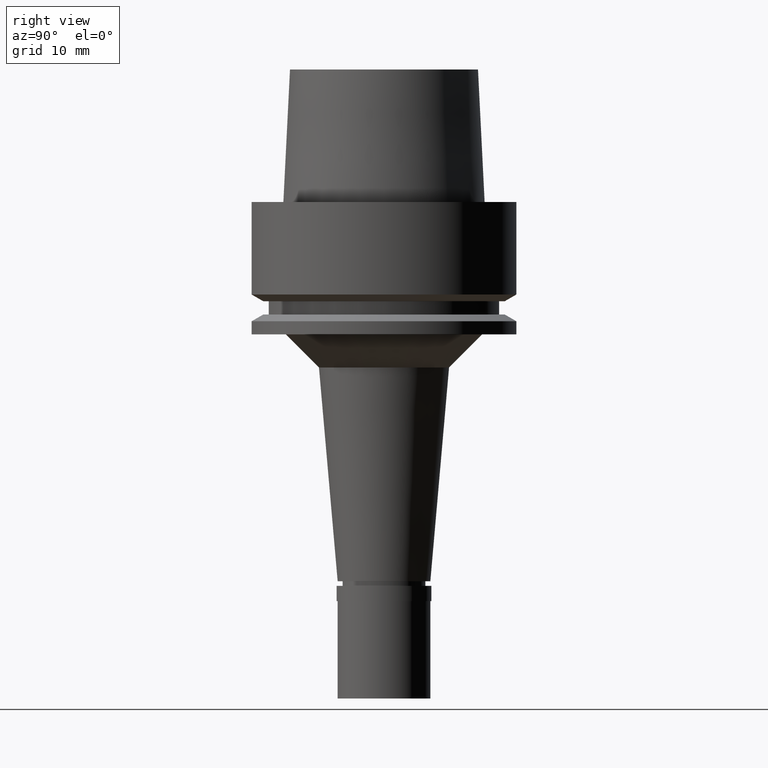
[diagram: clean part render]
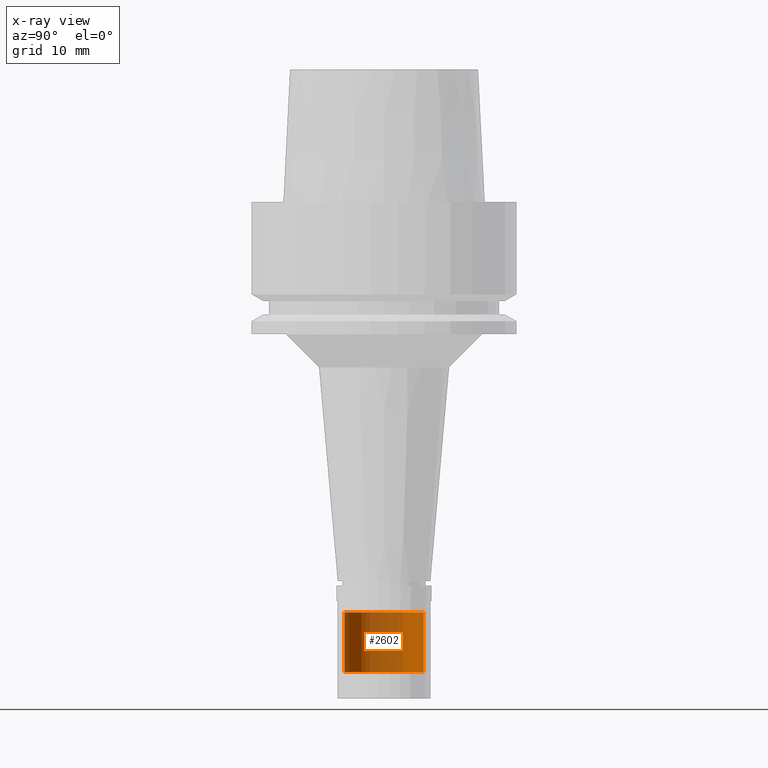
[diagram: x-ray — body ghosted, one internal face saturated and labeled with its STEP entity id]
A machine part, right view, then the same camera in x-ray: the body is ghosted and one INTERNAL B-rep face — a face not visible from any outside direction — is saturated and labeled: STEP entity #2602.
In plain terms, the highlighted cylindrical surface (partial cylindrical patch) has radius 6 mm, axis along (0, 0, 1).
Its self-contained STEP definition (entity closure, byte-faithful):
#65 = DIRECTION ( 'NONE',  ( 0.0000000000000000000, -1.000000000000000000, 0.0000000000000000000 ) ) ;
#139 = EDGE_CURVE ( 'NONE', #1198, #1853, #2532, .T. ) ;
#197 = DIRECTION ( 'NONE',  ( 0.0000000000000000000, 0.0000000000000000000, 1.000000000000000000 ) ) ;
#366 = CARTESIAN_POINT ( 'NONE',  ( 0.0000000000000000000, 0.0000000000000000000, -75.55000000000001137 ) ) ;
#380 = ORIENTED_EDGE ( 'NONE', *, *, #450, .F. ) ;
#388 = LINE ( 'NONE', #816, #2431 ) ;
#450 = EDGE_CURVE ( 'NONE', #1198, #1340, #1674, .T. ) ;
#467 = CARTESIAN_POINT ( 'NONE',  ( 0.0000000000000000000, 6.000000000000000000, -71.00000000000000000 ) ) ;
#722 = CARTESIAN_POINT ( 'NONE',  ( 0.0000000000000000000, -6.000000000000000000, -62.00000000000000000 ) ) ;
#744 = ORIENTED_EDGE ( 'NONE', *, *, #1408, .T. ) ;
#760 = EDGE_CURVE ( 'NONE', #1058, #1340, #2528, .T. ) ;
#816 = CARTESIAN_POINT ( 'NONE',  ( 0.0000000000000000000, 6.000000000000000000, -62.00000000000000000 ) ) ;
#890 = AXIS2_PLACEMENT_3D ( 'NONE', #1325, #1135, #65 ) ;
#908 = CARTESIAN_POINT ( 'NONE',  ( 0.0000000000000000000, -6.000000000000000000, -71.00000000000000000 ) ) ;
#971 = VECTOR ( 'NONE', #1055, 1000.000000000000000 ) ;
#1055 = DIRECTION ( 'NONE',  ( 0.0000000000000000000, 0.0000000000000000000, -1.000000000000000000 ) ) ;
#1058 = VERTEX_POINT ( 'NONE', #467 ) ;
#1135 = DIRECTION ( 'NONE',  ( 0.0000000000000000000, 0.0000000000000000000, -1.000000000000000000 ) ) ;
#1139 = AXIS2_PLACEMENT_3D ( 'NONE', #366, #1990, #1814 ) ;
#1198 = VERTEX_POINT ( 'NONE', #722 ) ;
#1226 = DIRECTION ( 'NONE',  ( 0.0000000000000000000, 0.0000000000000000000, -1.000000000000000000 ) ) ;
#1325 = CARTESIAN_POINT ( 'NONE',  ( 0.0000000000000000000, 0.0000000000000000000, -62.00000000000000000 ) ) ;
#1340 = VERTEX_POINT ( 'NONE', #908 ) ;
#1408 = EDGE_CURVE ( 'NONE', #1853, #1058, #388, .T. ) ;
#1590 = CYLINDRICAL_SURFACE ( 'NONE', #1139, 6.000000000000000000 ) ;
#1648 = CARTESIAN_POINT ( 'NONE',  ( 0.0000000000000000000, 6.000000000000000000, -62.00000000000000000 ) ) ;
#1661 = DIRECTION ( 'NONE',  ( 0.0000000000000000000, 1.000000000000000000, 0.0000000000000000000 ) ) ;
#1674 = LINE ( 'NONE', #1695, #971 ) ;
#1695 = CARTESIAN_POINT ( 'NONE',  ( 0.0000000000000000000, -6.000000000000000000, -62.00000000000000000 ) ) ;
#1744 = ORIENTED_EDGE ( 'NONE', *, *, #760, .T. ) ;
#1814 = DIRECTION ( 'NONE',  ( 0.0000000000000000000, 1.000000000000000000, 0.0000000000000000000 ) ) ;
#1822 = ORIENTED_EDGE ( 'NONE', *, *, #139, .T. ) ;
#1853 = VERTEX_POINT ( 'NONE', #1648 ) ;
#1916 = EDGE_LOOP ( 'NONE', ( #1744, #380, #1822, #744 ) ) ;
#1990 = DIRECTION ( 'NONE',  ( 0.0000000000000000000, 0.0000000000000000000, 1.000000000000000000 ) ) ;
#2008 = FACE_OUTER_BOUND ( 'NONE', #1916, .T. ) ;
#2032 = CARTESIAN_POINT ( 'NONE',  ( 0.0000000000000000000, 0.0000000000000000000, -71.00000000000000000 ) ) ;
#2431 = VECTOR ( 'NONE', #1226, 1000.000000000000000 ) ;
#2528 = CIRCLE ( 'NONE', #2607, 6.000000000000000000 ) ;
#2532 = CIRCLE ( 'NONE', #890, 6.000000000000000000 ) ;
#2602 = ADVANCED_FACE ( 'NONE', ( #2008 ), #1590, .T. ) ;
#2607 = AXIS2_PLACEMENT_3D ( 'NONE', #2032, #197, #1661 ) ;